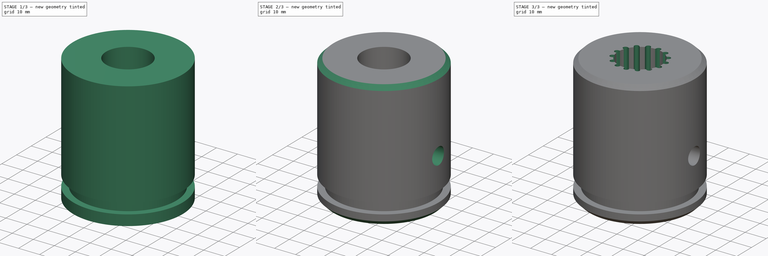
[diagram: build sequence overview — one tinted view per stage of 3, left to right]
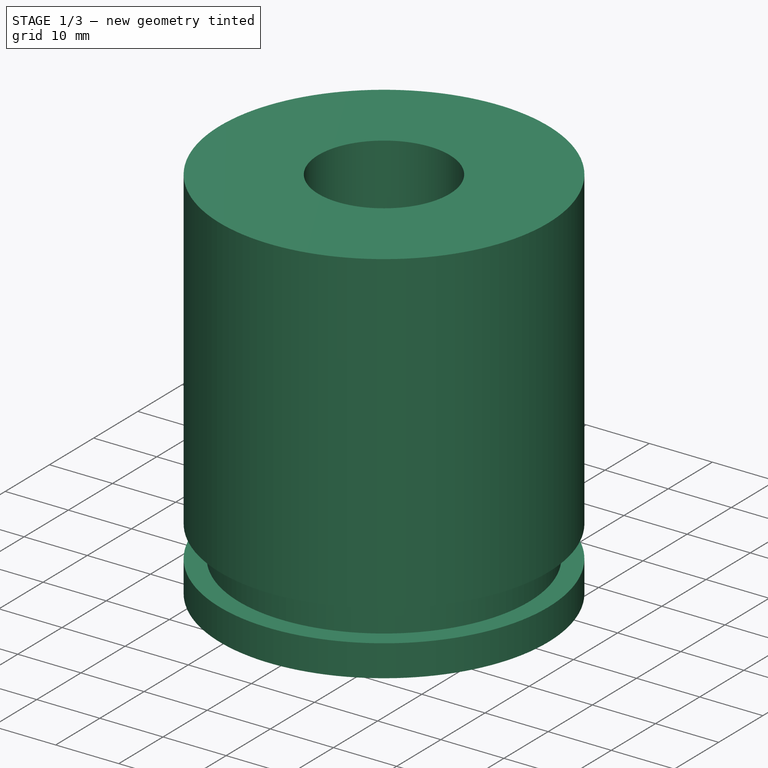
[diagram: stage 1 of 3 — iso view after this stage's code; geometry added in this stage tinted green]
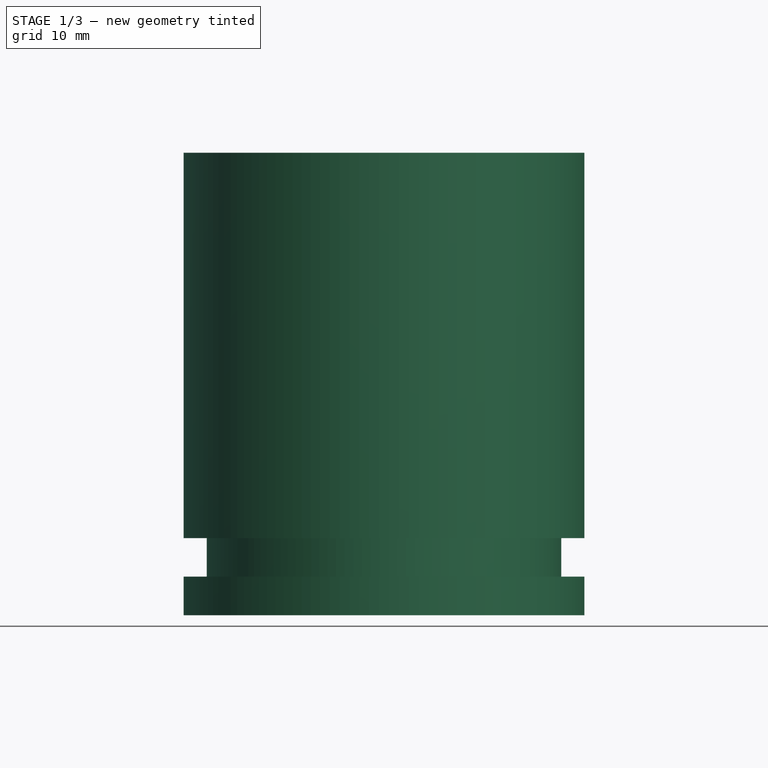
[diagram: stage 1 of 3 — front view after this stage's code; geometry added in this stage tinted green]
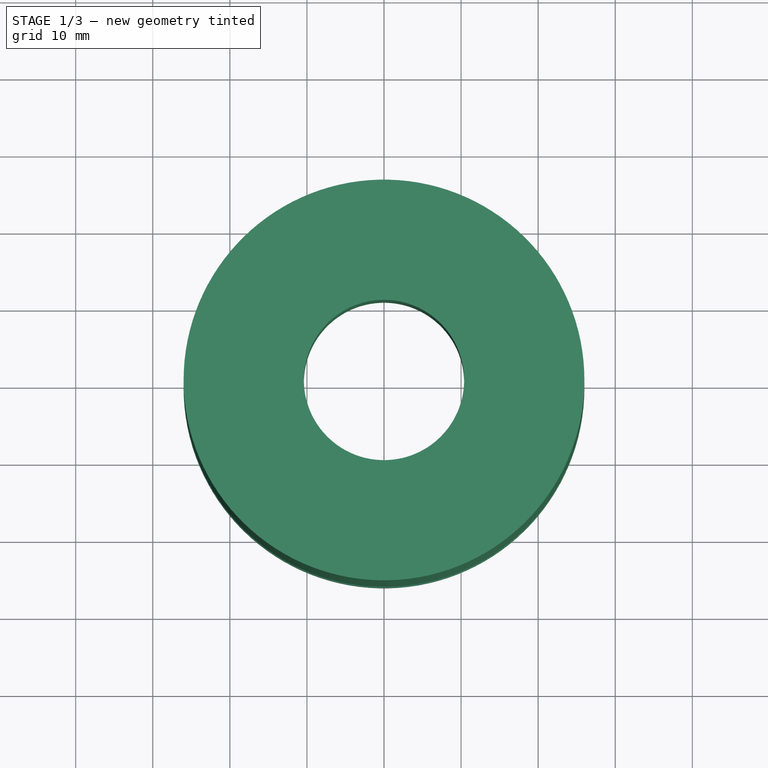
[diagram: stage 1 of 3 — top view after this stage's code; geometry added in this stage tinted green]
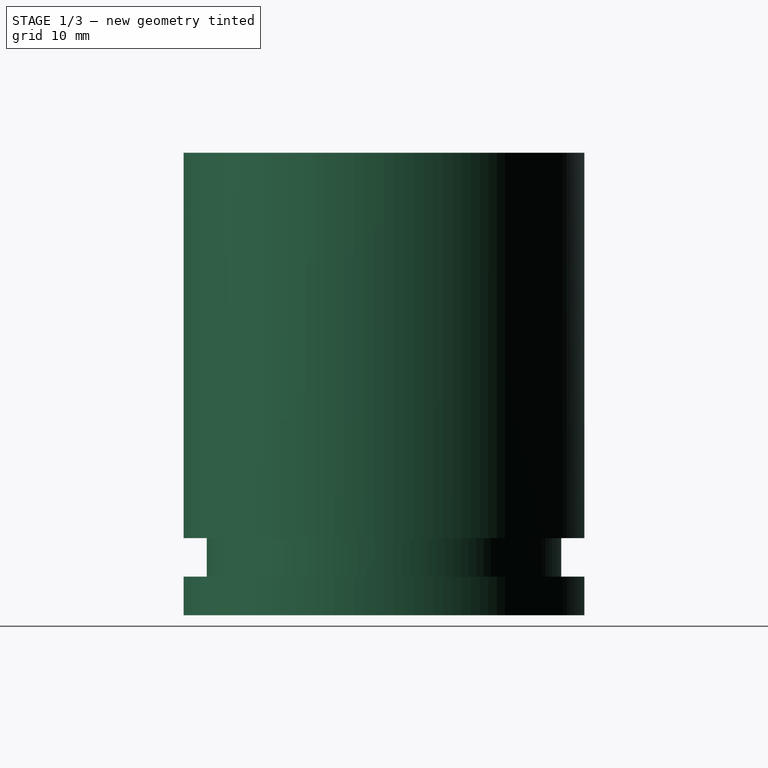
[diagram: stage 1 of 3 — right view after this stage's code; geometry added in this stage tinted green]
FCSTD DOCUMENT  (FreeCAD 0.17R9692 (Git))
Label: 4thExample
License: All rights reserved
LicenseURL: http://en.wikipedia.org/wiki/All_rights_reserved
objects: Sketcher::SketchObject×4, PartDesign::Pocket×3, PartDesign::AdditiveCylinder×1, PartDesign::Groove×1, PartDesign::ShapeBinder×1, PartDesign::Chamfer×1, PartDesign::PolarPattern×1, PartDesign::Body×1, App::Part×1
note: 18 computed .brp shape members not serialized (recipe doc carries the construction recipe); baked Part::Feature solids carry a one-line shape summary decoded from their .brp

FEATURE [PartDesign::AdditiveCylinder] Cylinder
  Angle = 360
  AttacherType = Attacher::AttachEngine3D
  Height = 60
  Radius = 26
FEATURE [Sketcher::SketchObject] Sketch
  MapMode = 5
  Placement = pos=(0,0,0) rot=(1,0,0;1.5708rad)
  Support = -> [XZ_Plane001]
  sketch-geometry (12):
    g0: LineSegment StartX=23 StartY=10 StartZ=0 EndX=33 EndY=10 EndZ=0
    g1: LineSegment StartX=33 StartY=10 StartZ=0 EndX=33 EndY=5 EndZ=0
    g2: LineSegment StartX=33 StartY=5 StartZ=0 EndX=23 EndY=5 EndZ=0
    g3: LineSegment StartX=23 StartY=5 StartZ=0 EndX=23 EndY=10 EndZ=0
    g4: LineSegment StartX=0 StartY=60 StartZ=0 EndX=10.4 EndY=60 EndZ=0
    g5: LineSegment StartX=10.4 StartY=60 StartZ=0 EndX=10.4 EndY=38 EndZ=0
    g6: LineSegment StartX=10.4 StartY=38 StartZ=0 EndX=12.85 EndY=38 EndZ=0
    g7: LineSegment StartX=12.5 StartY=33 StartZ=0 EndX=12.5 EndY=-2 EndZ=0
    g8: LineSegment StartX=12.5 StartY=-2 StartZ=0 EndX=0 EndY=-2 EndZ=0
    g9: LineSegment StartX=0 StartY=-2 StartZ=0 EndX=0 EndY=60 EndZ=0
    g10: LineSegment StartX=12.5 StartY=33 StartZ=0 EndX=12.85 EndY=33 EndZ=0
    g11: LineSegment StartX=12.85 StartY=33 StartZ=0 EndX=12.85 EndY=38 EndZ=0
  constraints (36):
    c: Coincident(g0,g1)
    c: Coincident(g1,g2)
    c: Coincident(g2,g3)
    c: Coincident(g3,g0)
    c: Horizontal(g0)
    c: Horizontal(g2)
    c: Vertical(g1)
    c: Vertical(g3)
    c: DistanceX(g-2,g2) = 23
    c: Distance(g1) = 5
    c: DistanceY(g-1,g1) = 5
    c: Distance(g0) = 10
    c: Horizontal(g4)
    c: Coincident(g4,g5)
    c: Vertical(g5)
    c: Coincident(g5,g6)
    c: Horizontal(g6)
    c: Vertical(g7)
    c: Coincident(g7,g8)
    c: Horizontal(g8)
    c: Coincident(g8,g9)
    c: Coincident(g9,g4)
    c: Vertical(g9)
    c: PointOnObject(g-1,g9)
    c: Distance(g8) = 12.5
    c: Distance(g4) = 10.4
    c: Distance(g5) = 22
    c: Distance(g-1,g4) = 60
    c: DistanceY(g-1,g8) = -2
    c: Horizontal(g10)
    c: Coincident(g10,g11)
    c: Vertical(g11)
    c: Coincident(g7,g10)
    c: Coincident(g6,g11)
    c: Distance(g4,g11) = 12.85
    c: Distance(g11) = 5
FEATURE [PartDesign::Groove] Groove
  Angle = 360
  Axis = (0,0,1)
  Base = (0,0,0)
  BaseFeature = -> Cylinder
  Profile = -> Sketch
  ReferenceAxis = -> Sketch [V_Axis]
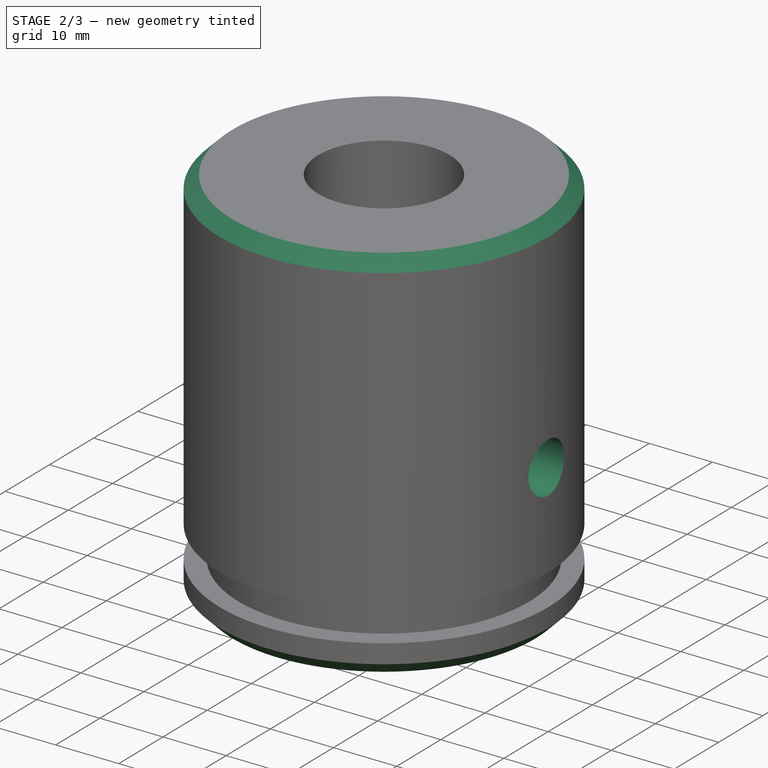
[diagram: stage 2 of 3 — iso view after this stage's code; geometry added in this stage tinted green]
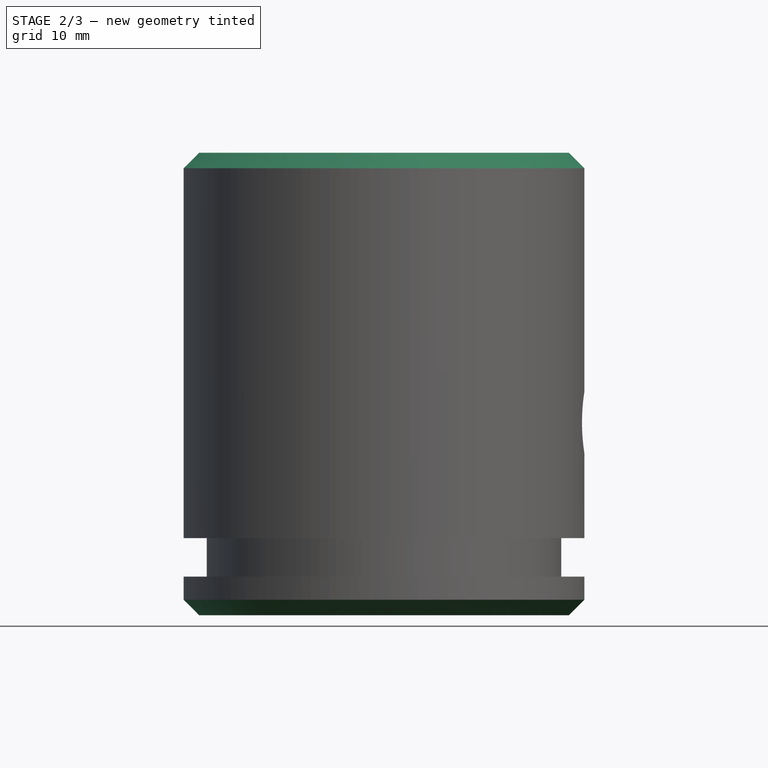
[diagram: stage 2 of 3 — front view after this stage's code; geometry added in this stage tinted green]
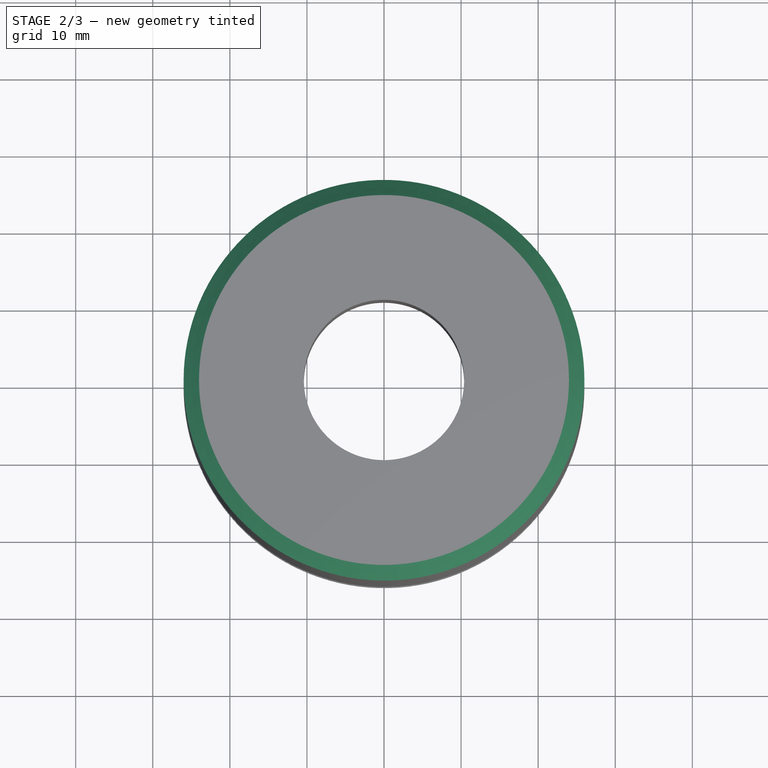
[diagram: stage 2 of 3 — top view after this stage's code; geometry added in this stage tinted green]
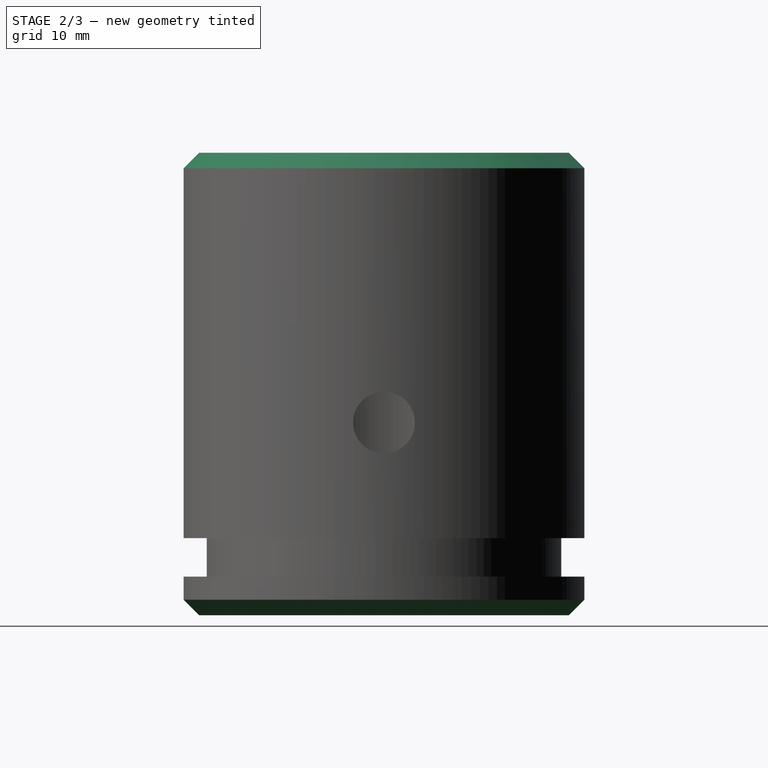
[diagram: stage 2 of 3 — right view after this stage's code; geometry added in this stage tinted green]
FEATURE [Sketcher::SketchObject] Sketch001
  MapMode = 5
  Placement = pos=(0,0,0) rot=(0.57735,0.57735,0.57735;2.0944rad)
  Support = -> [YZ_Plane001]
  sketch-geometry (1):
    g0: Circle CenterX=0 CenterY=25 CenterZ=0 NormalX=0 NormalY=0 NormalZ=1 Radius=4
  constraints (3):
    c: PointOnObject(g0,g-2)
    c: Radius(g0) = 4
    c: DistanceY(g-1,g0) = 25
FEATURE [PartDesign::Pocket] Pocket
  BaseFeature = -> Groove
  Length = 40
  Profile = -> Sketch001
  Reversed = true
  Type = 0
FEATURE [Sketcher::SketchObject] Sketch002
  ExternalGeometry = -> [Pocket]
  MapMode = 5
  Placement = pos=(0,0,0) rot=(0,1,0;3.14159rad)
  Support = -> [XY_Plane001]
  sketch-geometry (5):
    g0: LineSegment StartX=4 StartY=-7.8 StartZ=0 EndX=-4 EndY=-7.8 EndZ=0
    g1: LineSegment StartX=-4 StartY=-7.8 StartZ=0 EndX=-4 EndY=-15.8 EndZ=0
    g2: LineSegment StartX=-4 StartY=-15.8 StartZ=0 EndX=4 EndY=-15.8 EndZ=0
    g3: LineSegment StartX=4 StartY=-15.8 StartZ=0 EndX=4 EndY=-7.8 EndZ=0
    g4: LineSegment [constr] StartX=17.095 StartY=12.5 StartZ=0 EndX=-17.095 EndY=12.5 EndZ=0
  constraints (16):
    c: Coincident(g0,g1)
    c: Coincident(g1,g2)
    c: Coincident(g2,g3)
    c: Coincident(g3,g0)
    c: Horizontal(g0)
    c: Horizontal(g2)
    c: Vertical(g1)
    c: Vertical(g3)
    c: Distance(g2) = 8
    c: Symmetric(g2,g1,g-2)
    c: Horizontal(g4)
    c: Tangent(g4,g-3)
    c: Distance(g4,g2) = 28.3
    c: Distance(g1) = 8
    c: Symmetric(g4,g4,g-2)
    c: Distance(g4) = 34.19
FEATURE [PartDesign::Pocket] Pocket001
  BaseFeature = -> Pocket
  Length = 38
  Profile = -> Sketch002
  Type = 0
FEATURE [PartDesign::ShapeBinder] ShapeBinder
  Support = -> [Pocket001]
FEATURE [Sketcher::SketchObject] Sketch003
  ExternalGeometry = -> [Pocket001]
  MapMode = 5
  Placement = pos=(0,0,60) rot=(0,0,1;0rad)
  Support = -> [ShapeBinder]
  sketch-geometry (7):
    g0: ArcOfCircle CenterX=-11 CenterY=0 CenterZ=0 NormalX=0 NormalY=0 NormalZ=1 Radius=1.1 StartAngle=1.68033 EndAngle=4.60286
    g1: ArcOfCircle CenterX=-8 CenterY=1e-12 CenterZ=0 NormalX=0 NormalY=0 NormalZ=1 Radius=1.42794 StartAngle=4.60286 EndAngle=7.96351
    g2: LineSegment StartX=-11.1202 StartY=-1.09341 StartZ=0 EndX=-8.15609 EndY=-1.41938 EndZ=0
    g3: LineSegment StartX=-11.1202 StartY=1.09341 StartZ=0 EndX=-8.15609 EndY=1.41938 EndZ=0
    g4: LineSegment [constr] StartX=-12.1 StartY=3.63 StartZ=0 EndX=-12.1 EndY=-3.63 EndZ=0
    g5: LineSegment [constr] StartX=-11 StartY=3.63 StartZ=0 EndX=-11 EndY=-3.63 EndZ=0
    g6: LineSegment [constr] StartX=-10.3328 StartY=1.18 StartZ=0 EndX=-10.3328 EndY=-1.18 EndZ=0
  constraints (22):
    c: Tangent(g0,g3) = 1.5708
    c: Tangent(g0,g2) = -1.5708
    c: Tangent(g2,g1) = -1.5708
    c: Tangent(g3,g1) = 1.5708
    c: Radius(g0) = 1.1
    c: Vertical(g4)
    c: Tangent(g4,g0)
    c: PointOnObject(g0,g-1)
    c: Vertical(g5)
    c: Distance(g4,g5) = 1.1
    c: Distance(g-1,g5) = 11
    c: Distance(g1,g0) = 3
    c: Symmetric(g5,g5,g-1)
    c: Symmetric(g4,g4,g-1)
    c: Equal(g5,g4)
    c: Distance(g4) = 7.26
    c: Vertical(g6)
    c: Distance(g6) = 2.36
    c: PointOnObject(g6,g3)
    c: PointOnObject(g6,g2)
    c: Symmetric(g6,g6,g-1)
    c: PointOnObject(g6,g-3)
FEATURE [PartDesign::Chamfer] Chamfer
  Base = -> Pocket001 [Edge29,Edge6]
  BaseFeature = -> Pocket001
  Size = 2
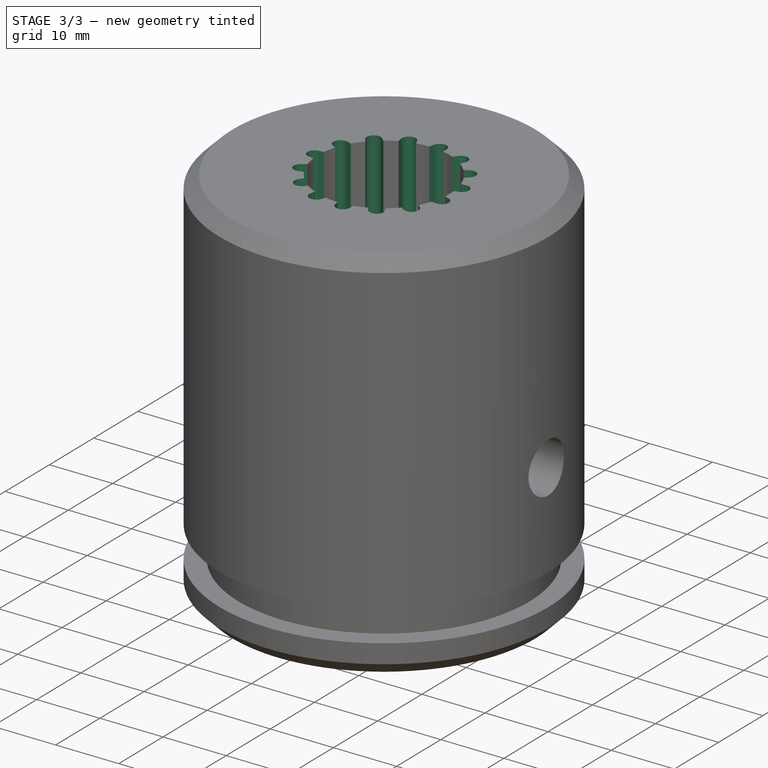
[diagram: stage 3 of 3 — iso view after this stage's code; geometry added in this stage tinted green]
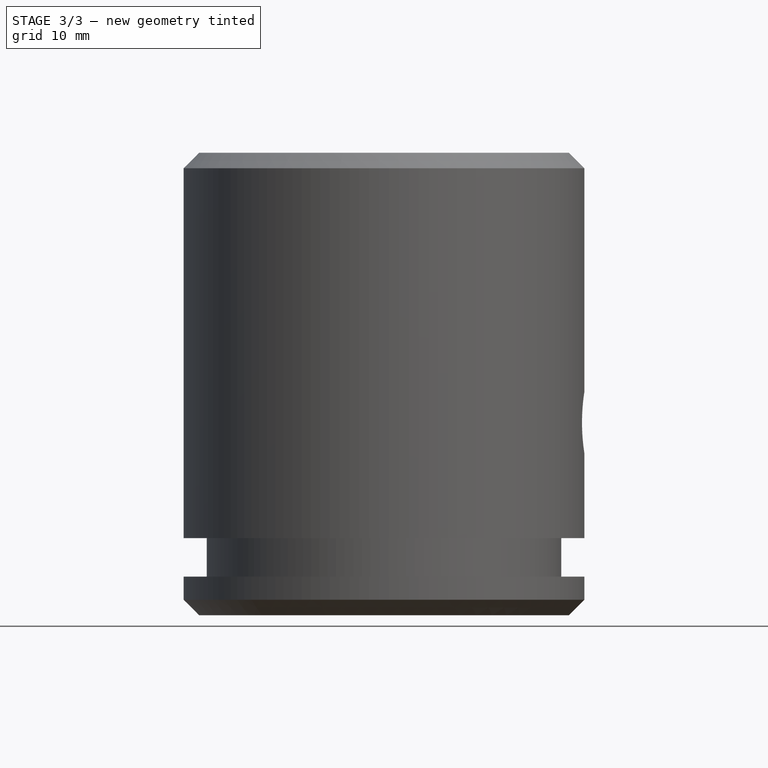
[diagram: stage 3 of 3 — front view after this stage's code; geometry added in this stage tinted green]
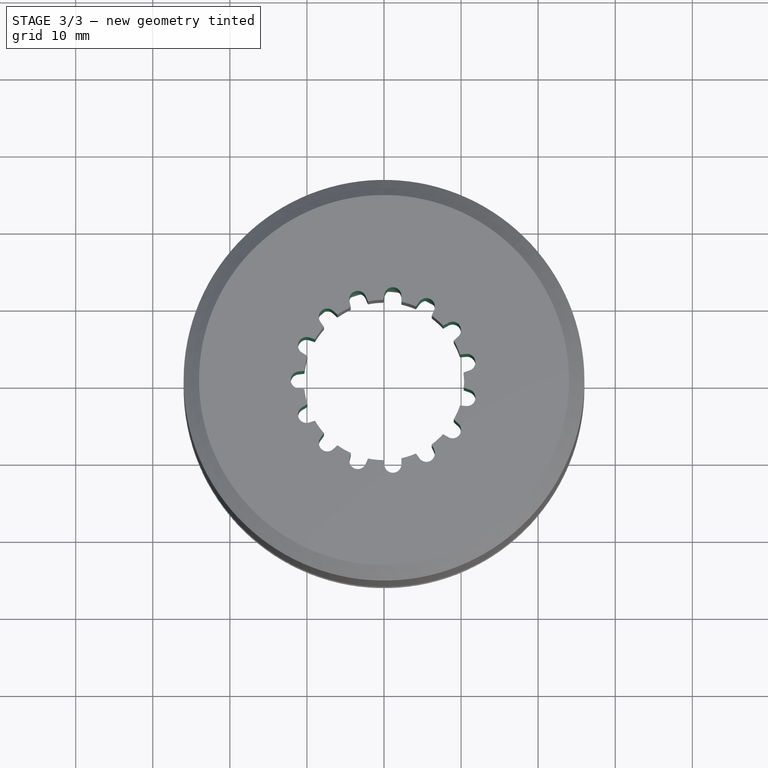
[diagram: stage 3 of 3 — top view after this stage's code; geometry added in this stage tinted green]
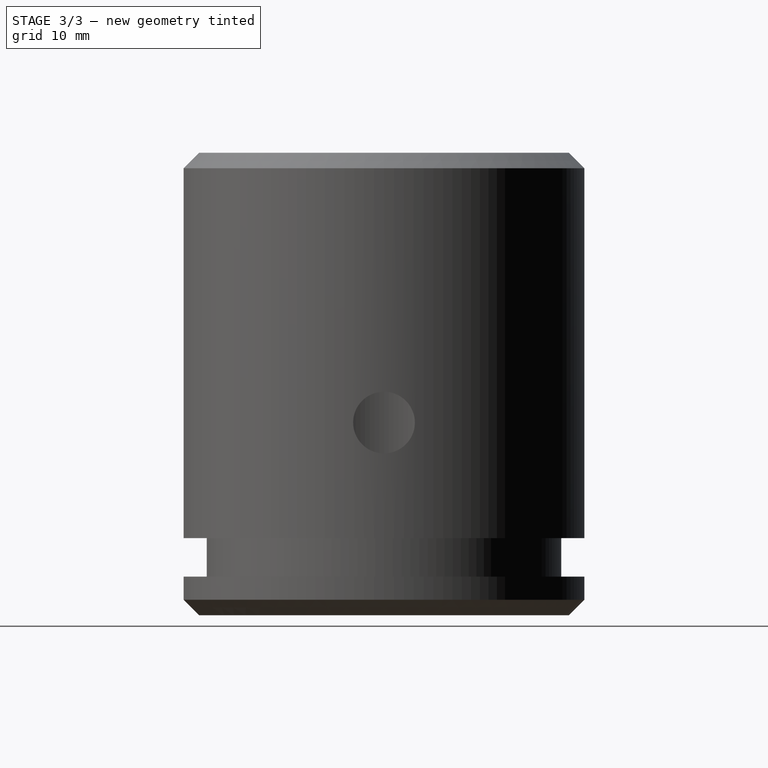
[diagram: stage 3 of 3 — right view after this stage's code; geometry added in this stage tinted green]
FEATURE [PartDesign::Pocket] Pocket002
  BaseFeature = -> Chamfer
  Length = 23
  Profile = -> Sketch003
  Type = 0
FEATURE [PartDesign::PolarPattern] PolarPattern
  Angle = 360
  Axis = -> Sketch003 [N_Axis]
  BaseFeature = -> Pocket002
  Occurrences = 15
  Originals = -> [Pocket002]
FEATURE [PartDesign::Body] Body
  Group = -> [Cylinder,Sketch,Groove,Sketch001,Pocket,Sketch002,Pocket001,Chamfer,ShapeBinder,Sketch003,Pocket002,PolarPattern]
  Origin = -> BodyOrigin
  Tip = -> PolarPattern
FEATURE [App::Part] Part
  Group = -> [Body]
  License = CC BY 3.0
  LicenseURL = http://creativecommons.org/licenses/by/3.0/
  Origin = -> PartOrigin
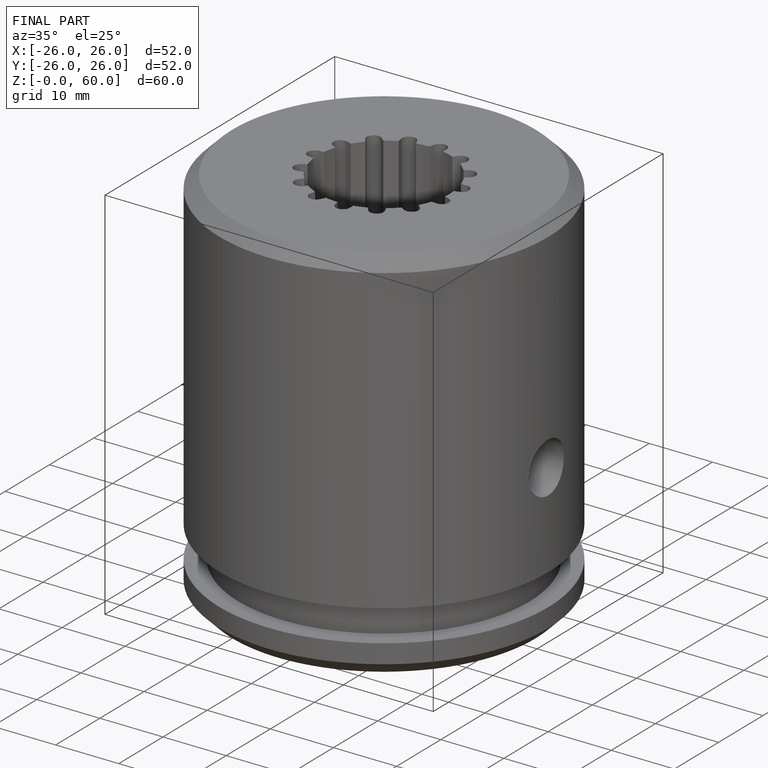
[diagram: finished part — iso view with bounding-box wireframe]
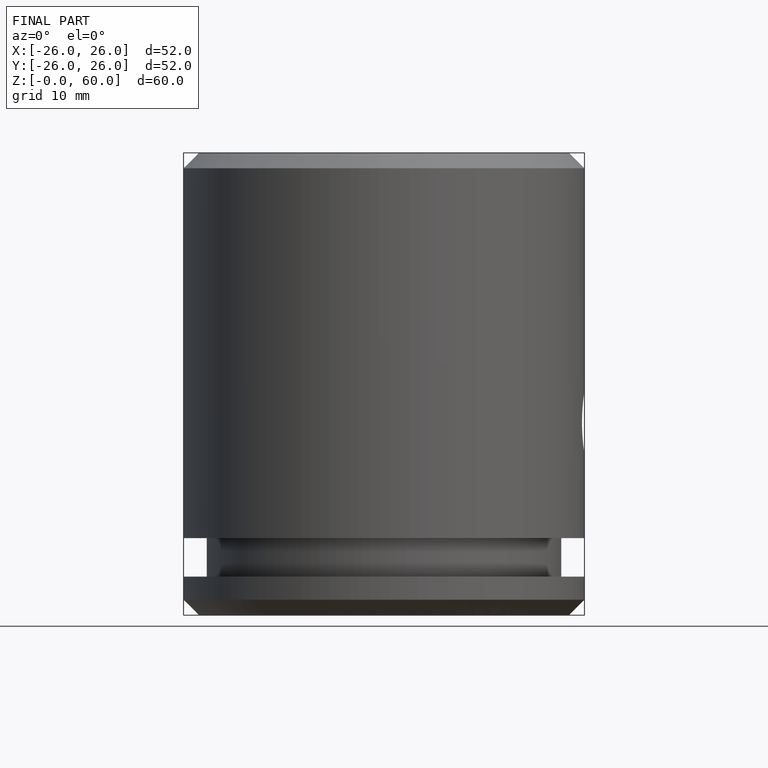
[diagram: finished part — front view with bounding-box wireframe]
